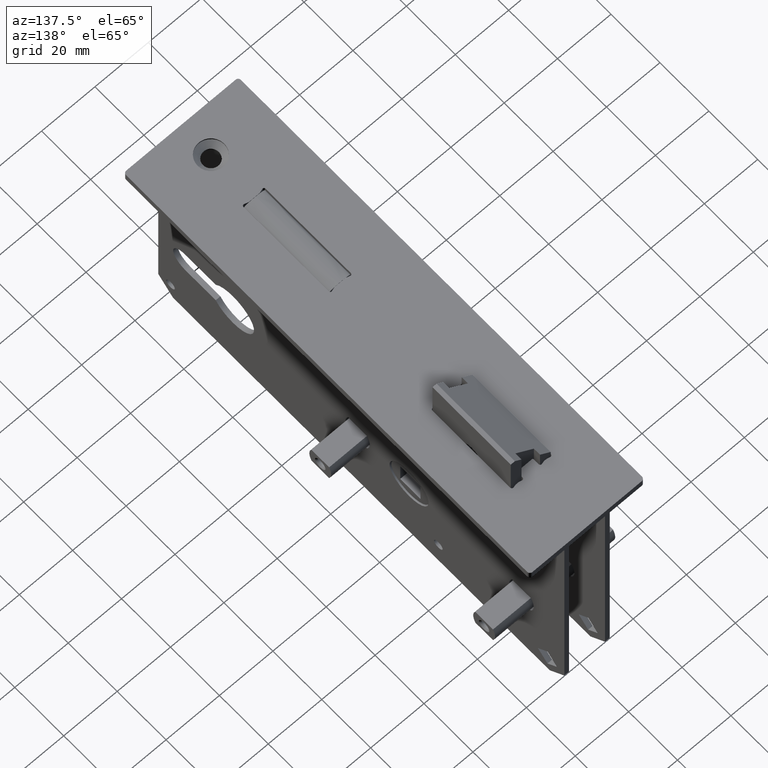
[diagram: clean part render]
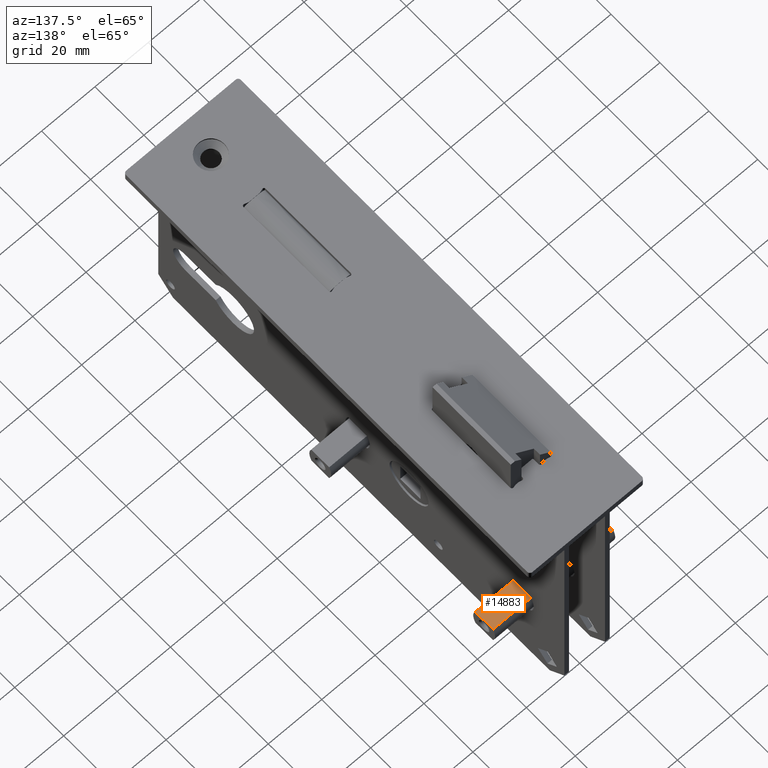
[diagram: same view with one face highlighted and labeled with its STEP entity id]
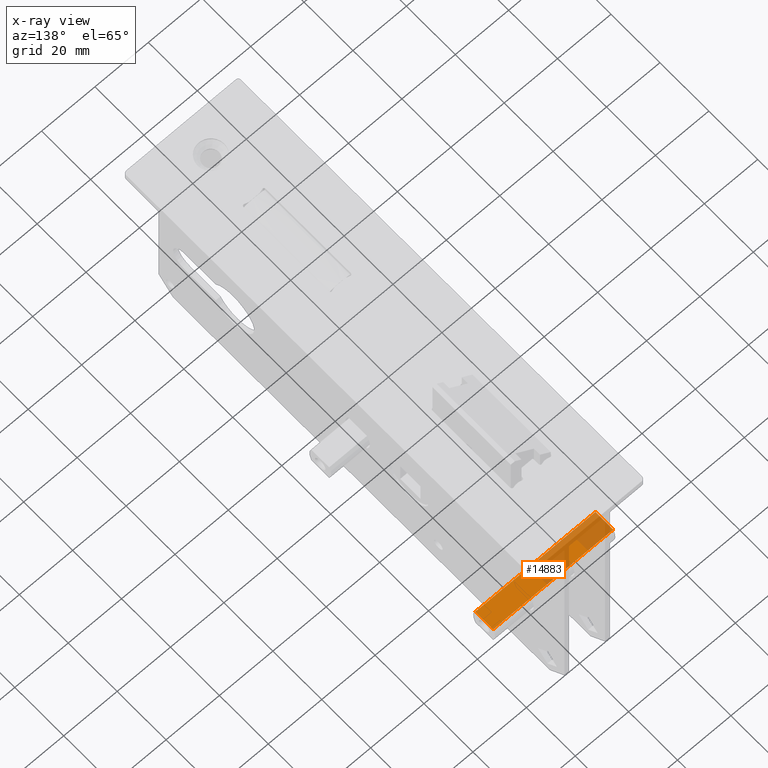
[diagram: x-ray of the same camera — body ghosted, the highlighted face saturated]
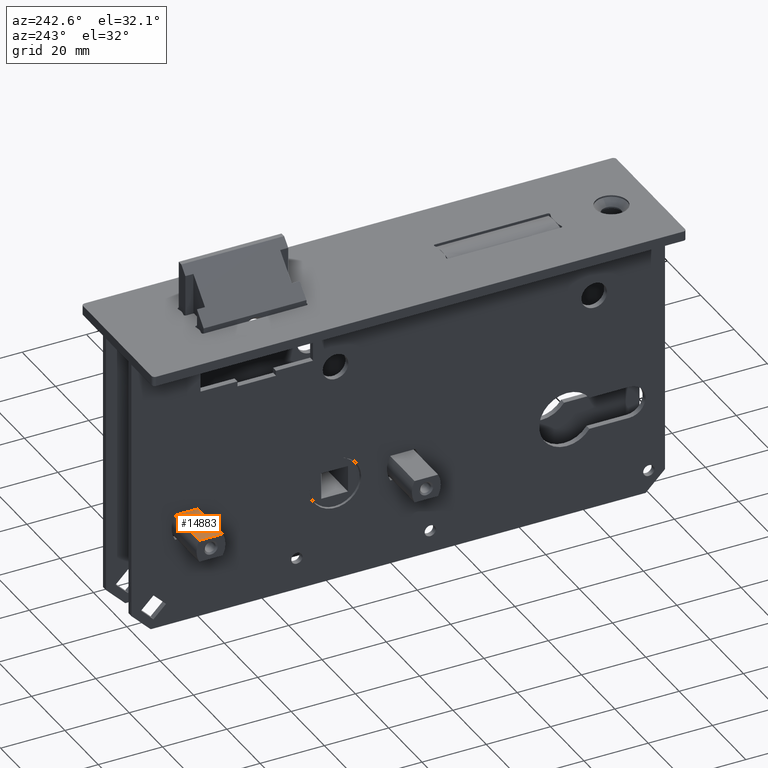
[diagram: same view with one face highlighted and labeled with its STEP entity id]
A machine part, auxiliary view. The second image highlights one B-rep face of the part: STEP entity #14883.
The next image is the same camera in x-ray: the body ghosted, the highlighted face saturated — about 50% of this face is hidden behind the body in this view.
A second angle (auxiliary view) of the same face is appended — the face is thin or edge-on in the first view.
In plain terms, the highlighted planar face has unit normal (0, 0, 1).
Its self-contained STEP definition (entity closure, byte-faithful):
#101 = LINE ( 'NONE', #18137, #15843 ) ;
#402 = ORIENTED_EDGE ( 'NONE', *, *, #14987, .F. ) ;
#1070 = DIRECTION ( 'NONE',  ( 1.000000000000000000, 0.000000000000000000, 0.000000000000000000 ) ) ;
#1423 = VECTOR ( 'NONE', #1640, 1000.000000000000000 ) ;
#1640 = DIRECTION ( 'NONE',  ( 0.000000000000000000, -1.000000000000000000, 0.000000000000000000 ) ) ;
#2871 = CARTESIAN_POINT ( 'NONE',  ( -47.90175425099136675, 61.86675041928916841, -54.99999999999999289 ) ) ;
#3249 = EDGE_CURVE ( 'NONE', #4941, #7606, #7972, .T. ) ;
#3919 = FACE_OUTER_BOUND ( 'NONE', #14167, .T. ) ;
#3959 = CARTESIAN_POINT ( 'NONE',  ( 22.49999999999997868, 61.86675041928916841, -54.99999999999999289 ) ) ;
#4379 = VECTOR ( 'NONE', #16592, 1000.000000000000000 ) ;
#4941 = VERTEX_POINT ( 'NONE', #19530 ) ;
#5307 = CARTESIAN_POINT ( 'NONE',  ( -22.49999999999998224, 69.13324958071078186, -54.99999999999999289 ) ) ;
#5662 = AXIS2_PLACEMENT_3D ( 'NONE', #13093, #5686, #1070 ) ;
#5686 = DIRECTION ( 'NONE',  ( -0.000000000000000000, 0.000000000000000000, 1.000000000000000000 ) ) ;
#6253 = CARTESIAN_POINT ( 'NONE',  ( 22.49999999999997868, 69.13324958071078186, -54.99999999999999289 ) ) ;
#6492 = VERTEX_POINT ( 'NONE', #5307 ) ;
#7606 = VERTEX_POINT ( 'NONE', #3959 ) ;
#7972 = LINE ( 'NONE', #2871, #4379 ) ;
#9782 = CARTESIAN_POINT ( 'NONE',  ( 22.49999999999997868, 69.13324958071078186, -54.99999999999999289 ) ) ;
#10046 = LINE ( 'NONE', #6253, #1423 ) ;
#10565 = DIRECTION ( 'NONE',  ( 1.000000000000000000, 0.000000000000000000, 0.000000000000000000 ) ) ;
#11208 = CARTESIAN_POINT ( 'NONE',  ( -22.49999999999998224, 69.13324958071076765, -54.99999999999999289 ) ) ;
#12001 = EDGE_CURVE ( 'NONE', #4941, #6492, #15146, .T. ) ;
#12277 = VECTOR ( 'NONE', #17078, 1000.000000000000000 ) ;
#12483 = ORIENTED_EDGE ( 'NONE', *, *, #3249, .T. ) ;
#13093 = CARTESIAN_POINT ( 'NONE',  ( -47.90175425099136675, 69.13324958071078186, -54.99999999999999289 ) ) ;
#14167 = EDGE_LOOP ( 'NONE', ( #16320, #12483, #18121, #402 ) ) ;
#14249 = VERTEX_POINT ( 'NONE', #9782 ) ;
#14883 = ADVANCED_FACE ( 'NONE', ( #3919 ), #15976, .T. ) ;
#14987 = EDGE_CURVE ( 'NONE', #6492, #14249, #101, .T. ) ;
#15146 = LINE ( 'NONE', #11208, #12277 ) ;
#15843 = VECTOR ( 'NONE', #10565, 1000.000000000000000 ) ;
#15976 = PLANE ( 'NONE',  #5662 ) ;
#16320 = ORIENTED_EDGE ( 'NONE', *, *, #12001, .F. ) ;
#16592 = DIRECTION ( 'NONE',  ( 1.000000000000000000, 0.000000000000000000, 0.000000000000000000 ) ) ;
#17078 = DIRECTION ( 'NONE',  ( 3.226642131554168315E-16, 1.000000000000000000, 0.000000000000000000 ) ) ;
#18054 = EDGE_CURVE ( 'NONE', #14249, #7606, #10046, .T. ) ;
#18121 = ORIENTED_EDGE ( 'NONE', *, *, #18054, .F. ) ;
#18137 = CARTESIAN_POINT ( 'NONE',  ( -47.90175425099136675, 69.13324958071078186, -54.99999999999999289 ) ) ;
#19530 = CARTESIAN_POINT ( 'NONE',  ( -22.49999999999998579, 61.86675041928916841, -54.99999999999999289 ) ) ;